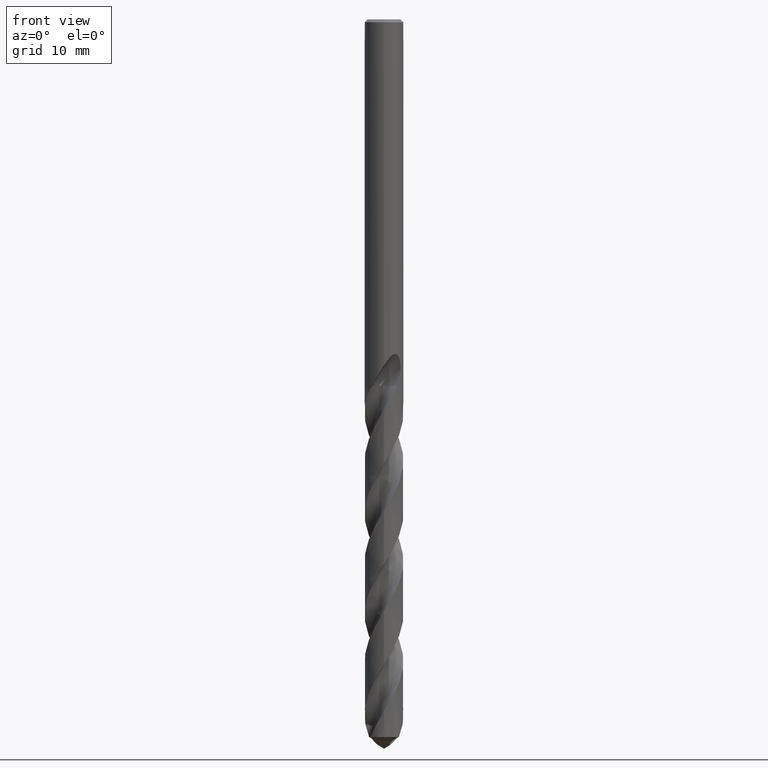
[diagram: clean part render]
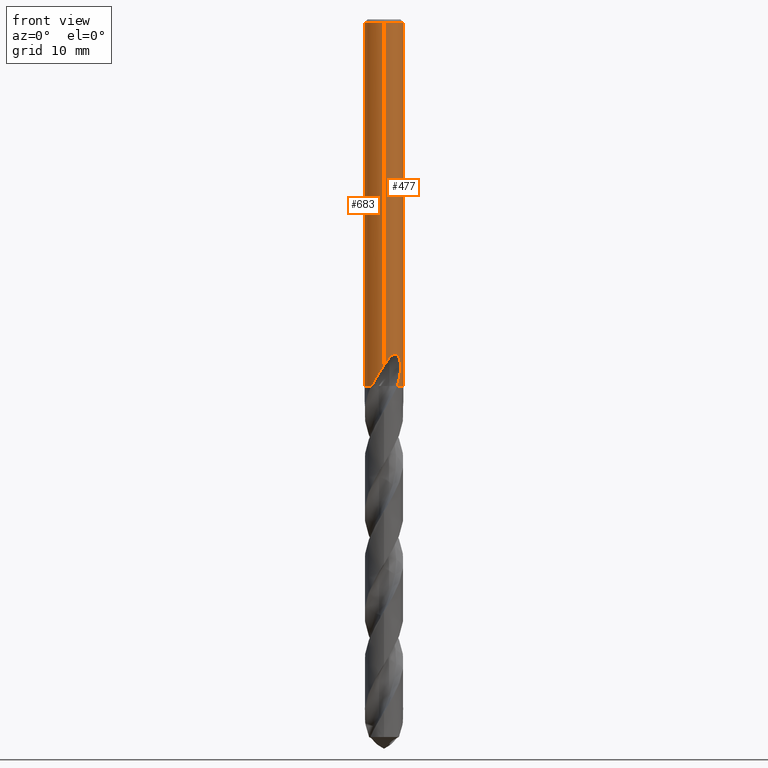
[diagram: same view with one multi-face feature highlighted, each face labeled with its STEP entity id]
A machine part, front view. The highlighted faces form ONE feature: a constant-radius fillet chain: 2 tangent blend faces with common blend radius 2 mm. The faces share edges in the B-rep.
Their STEP definitions:
[1] entity #477 (Cylinder):
#275=VERTEX_POINT('',#775);
#277=VERTEX_POINT('',#777);
#283=VERTEX_POINT('',#783);
#287=EDGE_CURVE('',#283,#623,#787,.T.);
#295=EDGE_CURVE('',#397,#415,#795,.T.);
#305=VERTEX_POINT('',#805);
#309=EDGE_CURVE('',#509,#689,#809,.T.);
#361=EDGE_CURVE('',#731,#445,#869,.T.);
#371=EDGE_CURVE('',#283,#561,#880,.T.);
#397=VERTEX_POINT('',#909);
#415=VERTEX_POINT('',#931);
#423=EDGE_CURVE('',#305,#275,#940,.T.);
#445=VERTEX_POINT('',#962);
#459=EDGE_CURVE('',#445,#659,#976,.T.);
#467=EDGE_CURVE('',#305,#623,#984,.T.);
#477=ADVANCED_FACE('',(#996),#997,.T.);
#479=VERTEX_POINT('',#999);
#509=VERTEX_POINT('',#1032);
#531=EDGE_CURVE('',#275,#731,#1057,.T.);
#561=VERTEX_POINT('',#1092);
#577=EDGE_CURVE('',#397,#277,#1109,.T.);
#595=EDGE_CURVE('',#697,#415,#1128,.T.);
#597=EDGE_CURVE('',#659,#509,#1130,.T.);
#617=EDGE_CURVE('',#689,#277,#1152,.T.);
#623=VERTEX_POINT('',#1159);
#659=VERTEX_POINT('',#1198);
#673=EDGE_CURVE('',#479,#561,#1212,.T.);
#689=VERTEX_POINT('',#1229);
#697=VERTEX_POINT('',#1237);
#713=EDGE_CURVE('',#697,#479,#1253,.T.);
#731=VERTEX_POINT('',#1272);
#775=CARTESIAN_POINT('',(0.29010312703583,1.97884819419885,-24.9998328990228));
#777=CARTESIAN_POINT('',(-1.51864291103934E-016,2.0,-23.0232688117743));
#783=CARTESIAN_POINT('',(1.27205891279158,1.54332955728435,-37.7));
#787=B_SPLINE_CURVE_WITH_KNOTS('',3,(#1347,#1348,#1349,#1350,#1351,#1352,#1353,#1354,#1355,#1356,#1357,#1358,#1359,#1360,#1361,#1362,#1363,#1364,#1365,#1366,#1367,#1368,#1369,#1370,#1371,#1372,#1373,#1374),.UNSPECIFIED.,.F.,.F.,(4,2,2,2,2,2,2,2,2,2,2,2,2,4),(0.0,0.976253434087435,1.51096185278213,1.9958182623443,2.55942501548552,3.23617259082025,3.82046833152564,4.08609401666959,4.28027933824365,4.46406521374986,4.69725322984667,5.03845472802656,5.52348596802615,6.07459506696533),.UNSPECIFIED.);
#795=CIRCLE('',#1470,2.0);
#805=CARTESIAN_POINT('',(-1.44945831354929E-017,2.0,-25.0310253601033));
#809=B_SPLINE_CURVE_WITH_KNOTS('',3,(#1816,#1817,#1818,#1819,#1820,#1821,#1822,#1823,#1824,#1825),.UNSPECIFIED.,.F.,.F.,(4,2,2,2,4),(0.668772102201481,1.00315815330222,1.33754420440296,1.66004422746342,1.98254425052387),.UNSPECIFIED.);
#869=LINE('',#2234,#2235);
#880=CIRCLE('',#2656,2.0);
#909=CARTESIAN_POINT('',(0.0,2.0,-0.300000000000001));
#931=CARTESIAN_POINT('',(2.44921270764475E-016,-2.0,-0.300000000000001));
#940=B_SPLINE_CURVE_WITH_KNOTS('',3,(#4593,#4594,#4595,#4596,#4597,#4598,#4599,#4600,#4601,#4602,#4603,#4604,#4605,#4606),.UNSPECIFIED.,.F.,.F.,(4,2,2,2,2,2,4),(6.29875163181925,6.63672345938473,6.96307452388774,7.28942558839075,7.61577665289376,7.94212771739676,8.26462777482947),.UNSPECIFIED.);
#962=CARTESIAN_POINT('',(0.873560781758956,1.79913633740545,-24.7587351791531));
#976=B_SPLINE_CURVE_WITH_KNOTS('',3,(#4685,#4686,#4687,#4688,#4689,#4690,#4691,#4692,#4693,#4694),.UNSPECIFIED.,.F.,.F.,(4,2,2,2,4),(8.58706544059272,8.90956545396504,9.23206546733736,9.56645150553826,9.90083754373918),.UNSPECIFIED.);
#984=LINE('',#4889,#4890);
#996=FACE_OUTER_BOUND('',#5052,.T.);
#997=CYLINDRICAL_SURFACE('',#5053,2.0);
#999=CARTESIAN_POINT('',(1.62728432652948,-1.16273200722759,-36.6098395401998));
#1032=CARTESIAN_POINT('',(1.33721006514658,1.48723543585765,-22.5150484364821));
#1057=ELLIPSE('',#5915,6.09598914673955,2.0);
#1092=CARTESIAN_POINT('',(1.39147385774032,-1.43659336738872,-37.7));
#1109=LINE('',#6085,#6086);
#1128=LINE('',#6261,#6262);
#1130=LINE('',#6265,#6266);
#1152=B_SPLINE_CURVE_WITH_KNOTS('',3,(#6664,#6665,#6666,#6667,#6668,#6669,#6670,#6671,#6672,#6673,#6674,#6675,#6676,#6677,#6678,#6679,#6680,#6681,#6682,#6683,#6684,#6685,#6686,#6687,#6688,#6689,#6690),.UNSPECIFIED.,.F.,.F.,(4,2,3,2,2,2,2,2,2,2,2,2,4),(-0.548215590012311,-0.274107795006156,0.0,0.274107795006156,0.548215590012311,0.825730471423247,1.10324535283418,1.37444912584475,1.64565289885531,1.91870457575909,2.19175625266288,2.46480792956666,2.73785960647045),.UNSPECIFIED.);
#1159=CARTESIAN_POINT('',(-6.59928004170113E-013,2.0,-35.579038582812));
#1198=CARTESIAN_POINT('',(1.33721006514658,1.48723543585765,-24.2901657003257));
#1212=B_SPLINE_CURVE_WITH_KNOTS('',3,(#7280,#7281,#7282,#7283),.UNSPECIFIED.,.F.,.F.,(4,4),(0.0,1.14417851431034),.UNSPECIFIED.);
#1229=CARTESIAN_POINT('',(0.799431726384364,1.83327818806915,-22.000000276873));
#1237=CARTESIAN_POINT('',(6.58706758843025E-013,-2.0,-35.579038582812));
#1253=B_SPLINE_CURVE_WITH_KNOTS('',3,(#7507,#7508,#7509,#7510,#7511,#7512,#7513,#7514,#7515,#7516,#7517,#7518,#7519,#7520,#7521,#7522,#7523,#7524,#7525,#7526,#7527,#7528,#7529,#7530,#7531,#7532,#7533,#7534),.UNSPECIFIED.,.F.,.F.,(4,2,2,2,2,2,2,2,2,2,2,2,2,4),(0.0,0.976253434087391,1.5109618527821,1.99581826234441,2.55942501548577,3.23617259082066,3.82046833152618,4.08609401667017,4.28027933824427,4.46406521375049,4.69725322984734,5.03845472802689,5.52348596802553,6.07459506696374),.UNSPECIFIED.);
#1272=CARTESIAN_POINT('',(0.873560781758957,1.79913633740545,-23.3198931596091));
#1347=CARTESIAN_POINT('',(1.27205891279158,1.54332955728435,-37.7));
#1348=CARTESIAN_POINT('',(1.14031596359712,1.65191608174329,-37.422962973602));
#1349=CARTESIAN_POINT('',(0.989037990013143,1.74834121142205,-37.16449317914));
#1350=CARTESIAN_POINT('',(0.725255686230942,1.8666740028332,-36.7324835815464));
#1351=CARTESIAN_POINT('',(0.630154238508823,1.90077648329538,-36.5801742603347));
#1352=CARTESIAN_POINT('',(0.445969492446859,1.95176099665056,-36.2852077756797));
#1353=CARTESIAN_POINT('',(0.357697334715228,1.96977380890792,-36.1439077181608));
#1354=CARTESIAN_POINT('',(0.166571006590877,1.99574666056539,-35.8392972874554));
#1355=CARTESIAN_POINT('',(0.0621072659499205,2.00181318407123,-35.6735845698468));
#1356=CARTESIAN_POINT('',(-0.169840427844641,1.996791749432,-35.319204774468));
#1357=CARTESIAN_POINT('',(-0.307389353765631,1.98161041490717,-35.1175602478406));
#1358=CARTESIAN_POINT('',(-0.572185742090547,1.92053573470239,-34.785860429528));
#1359=CARTESIAN_POINT('',(-0.718296181177505,1.87419923755723,-34.62447446646));
#1360=CARTESIAN_POINT('',(-0.939662793741346,1.76718386434549,-34.4730462207967));
#1361=CARTESIAN_POINT('',(-1.01309236893194,1.72669865565317,-34.4355500075416));
#1362=CARTESIAN_POINT('',(-1.14176656222363,1.6433384968797,-34.4067647499074));
#1363=CARTESIAN_POINT('',(-1.19454708929275,1.60537298266913,-34.4062451576516));
#1364=CARTESIAN_POINT('',(-1.29285694783473,1.52717120724882,-34.431511616376));
#1365=CARTESIAN_POINT('',(-1.33585409610196,1.48940004160086,-34.4551877201575));
#1366=CARTESIAN_POINT('',(-1.42335803841819,1.4066234489763,-34.5292553927176));
#1367=CARTESIAN_POINT('',(-1.46384183832482,1.36372525066064,-34.583939538569));
#1368=CARTESIAN_POINT('',(-1.54676602899999,1.27005410934359,-34.7336783364654));
#1369=CARTESIAN_POINT('',(-1.58639962451015,1.21904530756676,-34.8447415861389));
#1370=CARTESIAN_POINT('',(-1.66091486972142,1.11664187455343,-35.1554621689215));
#1371=CARTESIAN_POINT('',(-1.68784410562838,1.07303862106338,-35.3767465810007));
#1372=CARTESIAN_POINT('',(-1.70500323789908,1.04559092771917,-35.9055653850725));
#1373=CARTESIAN_POINT('',(-1.69276722126585,1.07108639362282,-36.237392052066));
#1374=CARTESIAN_POINT('',(-1.62728432652948,1.16273200722758,-36.6098395401998));
#1470=AXIS2_PLACEMENT_3D('',#7963,#7964,#7965);
#1816=CARTESIAN_POINT('',(1.47012520202413,1.35599848465015,-22.7645763622699));
#1817=CARTESIAN_POINT('',(1.42823312429702,1.40141637093117,-22.6661879668164));
#1818=CARTESIAN_POINT('',(1.37700313158227,1.45257649149882,-22.5728913601929));
#1819=CARTESIAN_POINT('',(1.25937268715861,1.55566594260758,-22.4000010024707));
#1820=CARTESIAN_POINT('',(1.19292509135235,1.60758103586569,-22.3204308421202));
#1821=CARTESIAN_POINT('',(1.05314270451827,1.70228131624892,-22.1810138076661));
#1822=CARTESIAN_POINT('',(0.975043515457271,1.74886723125333,-22.1155203403939));
#1823=CARTESIAN_POINT('',(0.802765528370344,1.83434292218238,-21.9980992724811));
#1824=CARTESIAN_POINT('',(0.708571764716129,1.87319984550034,-21.9461697171302));
#1825=CARTESIAN_POINT('',(0.60888935976986,1.90506003778334,-21.9037877961724));
#2234=CARTESIAN_POINT('',(0.873560781758957,1.79913633740545,-24.0393141693811));
#2235=VECTOR('',#8048,1.0);
#2656=AXIS2_PLACEMENT_3D('',#8058,#8059,#8060);
#4593=CARTESIAN_POINT('',(-1.37648100360337,1.45096521209816,-24.3164588568619));
#4594=CARTESIAN_POINT('',(-1.31816673698936,1.50628596020562,-24.4024844309626));
#4595=CARTESIAN_POINT('',(-1.25225772826138,1.5618966813795,-24.4817936475267));
#4596=CARTESIAN_POINT('',(-1.1133610702993,1.66360432908602,-24.6210752807463));
#4597=CARTESIAN_POINT('',(-1.03560993885635,1.71378114990643,-24.6866869307959));
#4598=CARTESIAN_POINT('',(-0.863747529925186,1.80650878215652,-24.8045844711332));
#4599=CARTESIAN_POINT('',(-0.769620967062479,1.84902996088718,-24.8568713835843));
#4600=CARTESIAN_POINT('',(-0.569930857037892,1.92000186579586,-24.942429432433));
#4601=CARTESIAN_POINT('',(-0.464135641093227,1.94850394700092,-24.9757733351224));
#4602=CARTESIAN_POINT('',(-0.247741439375822,1.98764023510202,-25.0202051098028));
#4603=CARTESIAN_POINT('',(-0.137134918591789,1.99825621603292,-25.0312723335086));
#4604=CARTESIAN_POINT('',(0.0791270399578554,2.00132335359969,-25.0312723335086));
#4605=CARTESIAN_POINT('',(0.188762138964385,1.99403822635428,-25.0204593773478));
#4606=CARTESIAN_POINT('',(0.296280536758929,1.97793271966916,-24.9985887758549));
#4685=CARTESIAN_POINT('',(0.608889383206421,1.90506003029262,-24.9014263240358));
#4686=CARTESIAN_POINT('',(0.708571784879529,1.87319983770418,-24.8590444043302));
#4687=CARTESIAN_POINT('',(0.802765545396488,1.83434291458278,-24.8071148505396));
#4688=CARTESIAN_POINT('',(0.975043526735322,1.74886722480981,-24.6896937861503));
#4689=CARTESIAN_POINT('',(1.05314271318471,1.70228131076369,-24.6242003208407));
#4690=CARTESIAN_POINT('',(1.19292509476605,1.60758103315258,-24.4847832910624));
#4691=CARTESIAN_POINT('',(1.25937268791021,1.55566594184168,-24.4052131336702));
#4692=CARTESIAN_POINT('',(1.37700312772911,1.45257649498288,-24.2323227822555));
#4693=CARTESIAN_POINT('',(1.4282331184988,1.40141637672136,-24.1390261789774));
#4694=CARTESIAN_POINT('',(1.4701251946435,1.35599849265197,-24.0406377870177));
#4889=CARTESIAN_POINT('',(-2.44921270764475E-016,2.0,-32.35));
#4890=VECTOR('',#8172,1.0);
#5052=EDGE_LOOP('',(#8191,#8192,#8193,#8194,#8195,#8196,#8197,#8198,#8199,#8200,#8201,#8202,#8203,#8204,#8205));
#5053=AXIS2_PLACEMENT_3D('',#8206,#8207,#8208);
#5915=AXIS2_PLACEMENT_3D('',#8274,#8275,#8276);
#6085=CARTESIAN_POINT('',(-2.44921270764475E-016,2.0,-32.35));
#6086=VECTOR('',#8341,1.0);
#6261=CARTESIAN_POINT('',(2.44921270764475E-016,-2.0,-32.35));
#6262=VECTOR('',#8353,1.0);
#6265=CARTESIAN_POINT('',(1.33721006514658,1.48723543585765,-23.4026070684039));
#6266=VECTOR('',#8354,1.0);
#6664=CARTESIAN_POINT('',(0.666631086045354,1.88563066243578,-21.8151107929061));
#6665=CARTESIAN_POINT('',(0.729102320063794,1.86354507196998,-21.8780227488525));
#6666=CARTESIAN_POINT('',(0.783764436294818,1.84046805476626,-21.9577166766729));
#6667=CARTESIAN_POINT('',(0.856939166721749,1.80755766979359,-22.1337829674881));
#6668=CARTESIAN_POINT('',(0.875400981188567,1.79824167511881,-22.2302727475847));
#6669=CARTESIAN_POINT('',(0.875400981188567,1.79824167511881,-22.3216420125868));
#6670=CARTESIAN_POINT('',(0.875400981188567,1.79824167511881,-22.4130112775888));
#6671=CARTESIAN_POINT('',(0.856939166721748,1.80755766979359,-22.5095010576855));
#6672=CARTESIAN_POINT('',(0.783764436294818,1.84046805476626,-22.6855673485006));
#6673=CARTESIAN_POINT('',(0.729102320063795,1.86354507196998,-22.765261276321));
#6674=CARTESIAN_POINT('',(0.60338335133634,1.90799077087001,-22.8918671669599));
#6675=CARTESIAN_POINT('',(0.523220700755639,1.9324817755433,-22.9473851984488));
#6676=CARTESIAN_POINT('',(0.345948180222079,1.97194461719866,-23.0217410458937));
#6677=CARTESIAN_POINT('',(0.248747613970385,1.98662573029135,-23.0405166027747));
#6678=CARTESIAN_POINT('',(0.0664024182108824,2.00094055539991,-23.0405166027747));
#6679=CARTESIAN_POINT('',(-0.0298165717053051,2.00173631708055,-23.0225004233016));
#6680=CARTESIAN_POINT('',(-0.206564318568687,1.99127308369892,-22.949408961197));
#6681=CARTESIAN_POINT('',(-0.287121312363243,1.98033563604648,-22.8943562878938));
#6682=CARTESIAN_POINT('',(-0.414672305431931,1.95761889791181,-22.7673627445134));
#6683=CARTESIAN_POINT('',(-0.470171773775565,1.9443239450413,-22.6866825279345));
#6684=CARTESIAN_POINT('',(-0.544021821427442,1.92496686225787,-22.5093580077113));
#6685=CARTESIAN_POINT('',(-0.562348199187247,1.91931354991071,-22.4126592382214));
#6686=CARTESIAN_POINT('',(-0.562348199187247,1.91931354991071,-22.2306247869522));
#6687=CARTESIAN_POINT('',(-0.544021821427444,1.92496686225787,-22.1339260174622));
#6688=CARTESIAN_POINT('',(-0.470171773775569,1.9443239450413,-21.9566014972391));
#6689=CARTESIAN_POINT('',(-0.414672305431931,1.95761889791181,-21.8759212806602));
#6690=CARTESIAN_POINT('',(-0.350680272731792,1.96901583191115,-21.8122089191552));
#7280=CARTESIAN_POINT('',(1.6272843265821,-1.16273200715395,-36.6098395402287));
#7281=CARTESIAN_POINT('',(1.56310110942612,-1.25255867629605,-36.9749041661553));
#7282=CARTESIAN_POINT('',(1.48580745805006,-1.34522253015861,-37.3421073211277));
#7283=CARTESIAN_POINT('',(1.39147385774032,-1.43659336738872,-37.7));
#7507=CARTESIAN_POINT('',(-1.27205891279157,-1.54332955728435,-37.7));
#7508=CARTESIAN_POINT('',(-1.14031596359712,-1.65191608174329,-37.4229629736021));
#7509=CARTESIAN_POINT('',(-0.989037990013159,-1.74834121142205,-37.1644931791401));
#7510=CARTESIAN_POINT('',(-0.725255686230928,-1.86667400283321,-36.7324835815464));
#7511=CARTESIAN_POINT('',(-0.63015423850879,-1.90077648329539,-36.5801742603346));
#7512=CARTESIAN_POINT('',(-0.445969492446864,-1.95176099665055,-36.2852077756797));
#7513=CARTESIAN_POINT('',(-0.357697334715236,-1.96977380890792,-36.1439077181608));
#7514=CARTESIAN_POINT('',(-0.166571006590871,-1.99574666056539,-35.8392972874553));
#7515=CARTESIAN_POINT('',(-0.0621072659499175,-2.00181318407123,-35.6735845698468));
#7516=CARTESIAN_POINT('',(0.169840427844634,-1.996791749432,-35.319204774468));
#7517=CARTESIAN_POINT('',(0.307389353765629,-1.98161041490717,-35.1175602478406));
#7518=CARTESIAN_POINT('',(0.572185742090549,-1.92053573470239,-34.785860429528));
#7519=CARTESIAN_POINT('',(0.718296181177506,-1.87419923755723,-34.62447446646));
#7520=CARTESIAN_POINT('',(0.939662793741341,-1.7671838643455,-34.4730462207967));
#7521=CARTESIAN_POINT('',(1.01309236893194,-1.72669865565317,-34.4355500075416));
#7522=CARTESIAN_POINT('',(1.14176656222363,-1.64333849687971,-34.4067647499074));
#7523=CARTESIAN_POINT('',(1.19454708929275,-1.60537298266913,-34.4062451576516));
#7524=CARTESIAN_POINT('',(1.29285694783473,-1.52717120724882,-34.431511616376));
#7525=CARTESIAN_POINT('',(1.33585409610196,-1.48940004160085,-34.4551877201575));
#7526=CARTESIAN_POINT('',(1.42335803841819,-1.4066234489763,-34.5292553927176));
#7527=CARTESIAN_POINT('',(1.46384183832482,-1.36372525066064,-34.583939538569));
#7528=CARTESIAN_POINT('',(1.54676602899994,-1.27005410934365,-34.7336783364653));
#7529=CARTESIAN_POINT('',(1.58639962451012,-1.2190453075668,-34.8447415861387));
#7530=CARTESIAN_POINT('',(1.66091486972143,-1.11664187455342,-35.1554621689216));
#7531=CARTESIAN_POINT('',(1.68784410562838,-1.07303862106338,-35.3767465810007));
#7532=CARTESIAN_POINT('',(1.70500323789909,-1.04559092771917,-35.9055653850725));
#7533=CARTESIAN_POINT('',(1.69276722126584,-1.07108639362283,-36.2373920520661));
#7534=CARTESIAN_POINT('',(1.62728432652948,-1.16273200722758,-36.6098395401998));
#7963=CARTESIAN_POINT('',(0.0,0.0,-0.300000000000001));
#7964=DIRECTION('',(0.0,0.0,-1.0));
#7965=DIRECTION('',(0.0,1.0,0.0));
#8048=DIRECTION('',(0.0,0.0,-1.0));
#8058=CARTESIAN_POINT('',(0.0,0.0,-37.7));
#8059=DIRECTION('',(0.0,0.0,-1.0));
#8060=DIRECTION('',(0.0,1.0,0.0));
#8172=DIRECTION('',(0.0,0.0,-1.0));
#8191=ORIENTED_EDGE('',*,*,#577,.F.);
#8192=ORIENTED_EDGE('',*,*,#295,.T.);
#8193=ORIENTED_EDGE('',*,*,#595,.F.);
#8194=ORIENTED_EDGE('',*,*,#713,.T.);
#8195=ORIENTED_EDGE('',*,*,#673,.T.);
#8196=ORIENTED_EDGE('',*,*,#371,.F.);
#8197=ORIENTED_EDGE('',*,*,#287,.T.);
#8198=ORIENTED_EDGE('',*,*,#467,.F.);
#8199=ORIENTED_EDGE('',*,*,#423,.T.);
#8200=ORIENTED_EDGE('',*,*,#531,.T.);
#8201=ORIENTED_EDGE('',*,*,#361,.T.);
#8202=ORIENTED_EDGE('',*,*,#459,.T.);
#8203=ORIENTED_EDGE('',*,*,#597,.T.);
#8204=ORIENTED_EDGE('',*,*,#309,.T.);
#8205=ORIENTED_EDGE('',*,*,#617,.T.);
#8206=CARTESIAN_POINT('',(0.0,0.0,-32.35));
#8207=DIRECTION('',(-0.0,-0.0,1.0));
#8208=DIRECTION('',(0.0,1.0,0.0));
#8274=CARTESIAN_POINT('',(0.0,0.0,-25.8351219173269));
#8275=DIRECTION('',(0.944648353914092,0.0,-0.328084573619969));
#8276=DIRECTION('',(0.328084573619968,-0.0,0.944648353914092));
#8341=DIRECTION('',(0.0,0.0,-1.0));
#8353=DIRECTION('',(-0.0,-0.0,1.0));
#8354=DIRECTION('',(-0.0,-0.0,1.0));
[2] entity #683 (Cylinder):
#277=VERTEX_POINT('',#777);
#285=EDGE_CURVE('',#375,#367,#785,.T.);
#305=VERTEX_POINT('',#805);
#313=EDGE_CURVE('',#277,#669,#813,.T.);
#331=VERTEX_POINT('',#835);
#367=VERTEX_POINT('',#875);
#373=EDGE_CURVE('',#669,#707,#882,.T.);
#375=VERTEX_POINT('',#884);
#395=VERTEX_POINT('',#907);
#397=VERTEX_POINT('',#909);
#415=VERTEX_POINT('',#931);
#467=EDGE_CURVE('',#305,#623,#984,.T.);
#471=VERTEX_POINT('',#989);
#481=EDGE_CURVE('',#707,#613,#1001,.T.);
#487=EDGE_CURVE('',#367,#735,#1007,.T.);
#511=EDGE_CURVE('',#395,#697,#1034,.T.);
#515=EDGE_CURVE('',#623,#331,#1038,.T.);
#573=EDGE_CURVE('',#613,#375,#1105,.T.);
#577=EDGE_CURVE('',#397,#277,#1109,.T.);
#595=EDGE_CURVE('',#697,#415,#1128,.T.);
#611=EDGE_CURVE('',#735,#305,#1146,.T.);
#613=VERTEX_POINT('',#1148);
#623=VERTEX_POINT('',#1159);
#637=EDGE_CURVE('',#331,#471,#1174,.T.);
#657=EDGE_CURVE('',#415,#397,#1196,.T.);
#669=VERTEX_POINT('',#1208);
#671=EDGE_CURVE('',#395,#471,#1210,.T.);
#683=ADVANCED_FACE('',(#1222),#1223,.T.);
#697=VERTEX_POINT('',#1237);
#707=VERTEX_POINT('',#1247);
#735=VERTEX_POINT('',#1276);
#777=CARTESIAN_POINT('',(-1.51864291103934E-016,2.0,-23.0232688117743));
#785=LINE('',#1343,#1344);
#805=CARTESIAN_POINT('',(-1.44945831354929E-017,2.0,-25.0310253601033));
#813=B_SPLINE_CURVE_WITH_KNOTS('',3,(#1846,#1847,#1848,#1849,#1850,#1851,#1852,#1853,#1854,#1855,#1856,#1857,#1858,#1859,#1860,#1861,#1862,#1863,#1864,#1865,#1866,#1867,#1868,#1869,#1870,#1871,#1872),.UNSPECIFIED.,.F.,.F.,(4,2,3,2,2,2,2,2,2,2,2,2,4),(-0.548215590012311,-0.274107795006156,0.0,0.274107795006156,0.548215590012311,0.825730471423247,1.10324535283418,1.37444912584475,1.64565289885531,1.91870457575909,2.19175625266288,2.46480792956666,2.73785960647045),.UNSPECIFIED.);
#835=CARTESIAN_POINT('',(-1.62728432652948,1.16273200722759,-36.6098395401998));
#875=CARTESIAN_POINT('',(-2.44921270764476E-016,2.0,-23.7128911336578));
#882=B_SPLINE_CURVE_WITH_KNOTS('',3,(#2659,#2660,#2661,#2662,#2663,#2664,#2665,#2666,#2667,#2668,#2669,#2670,#2671,#2672,#2673,#2674,#2675,#2676,#2677,#2678,#2679,#2680,#2681,#2682,#2683,#2684,#2685),.UNSPECIFIED.,.F.,.F.,(4,2,3,2,2,2,2,2,2,2,2,2,4),(-0.548215590012311,-0.274107795006156,0.0,0.274107795006156,0.548215590012311,0.825730471423247,1.10324535283418,1.37444912584475,1.64565289885531,1.91870457575909,2.19175625266288,2.46480792956666,2.73785960647045),.UNSPECIFIED.);
#884=CARTESIAN_POINT('',(2.06254272401591E-016,2.0,-23.5000801551881));
#907=CARTESIAN_POINT('',(-1.27205891279158,-1.54332955728435,-37.7));
#909=CARTESIAN_POINT('',(0.0,2.0,-0.300000000000001));
#931=CARTESIAN_POINT('',(2.44921270764475E-016,-2.0,-0.300000000000001));
#984=LINE('',#4889,#4890);
#989=CARTESIAN_POINT('',(-1.39147385774032,1.43659336738872,-37.7));
#1001=CIRCLE('',#5058,2.0);
#1007=ELLIPSE('',#5067,2.22985686408572,2.0);
#1034=B_SPLINE_CURVE_WITH_KNOTS('',3,(#5837,#5838,#5839,#5840,#5841,#5842,#5843,#5844,#5845,#5846,#5847,#5848,#5849,#5850,#5851,#5852,#5853,#5854,#5855,#5856,#5857,#5858,#5859,#5860,#5861,#5862,#5863,#5864),.UNSPECIFIED.,.F.,.F.,(4,2,2,2,2,2,2,2,2,2,2,2,2,4),(0.0,0.976253434087391,1.5109618527821,1.99581826234441,2.55942501548577,3.23617259082066,3.82046833152618,4.08609401667017,4.28027933824427,4.46406521375049,4.69725322984734,5.03845472802689,5.52348596802553,6.07459506696374),.UNSPECIFIED.);
#1038=B_SPLINE_CURVE_WITH_KNOTS('',3,(#5869,#5870,#5871,#5872,#5873,#5874,#5875,#5876,#5877,#5878,#5879,#5880,#5881,#5882,#5883,#5884,#5885,#5886,#5887,#5888,#5889,#5890,#5891,#5892,#5893,#5894,#5895,#5896),.UNSPECIFIED.,.F.,.F.,(4,2,2,2,2,2,2,2,2,2,2,2,2,4),(0.0,0.976253434087435,1.51096185278213,1.9958182623443,2.55942501548552,3.23617259082025,3.82046833152564,4.08609401666959,4.28027933824365,4.46406521374986,4.69725322984667,5.03845472802656,5.52348596802615,6.07459506696533),.UNSPECIFIED.);
#1105=B_SPLINE_CURVE_WITH_KNOTS('',3,(#6060,#6061,#6062,#6063,#6064,#6065,#6066,#6067,#6068,#6069,#6070,#6071,#6072,#6073,#6074,#6075,#6076,#6077,#6078,#6079),.UNSPECIFIED.,.F.,.F.,(4,2,2,2,2,2,2,2,2,4),(3.45441030101493,3.68346067074283,3.91251104047072,4.14156141019862,4.59966214965442,5.05038771369436,5.27575049571434,5.50111327773431,5.73544410316885,5.96977492860339),.UNSPECIFIED.);
#1109=LINE('',#6085,#6086);
#1128=LINE('',#6261,#6262);
#1146=B_SPLINE_CURVE_WITH_KNOTS('',3,(#6644,#6645,#6646,#6647,#6648,#6649,#6650,#6651,#6652,#6653,#6654,#6655,#6656,#6657),.UNSPECIFIED.,.F.,.F.,(4,2,2,2,2,2,4),(6.29875163181925,6.63672345938473,6.96307452388774,7.28942558839075,7.61577665289376,7.94212771739676,8.26462777482947),.UNSPECIFIED.);
#1148=CARTESIAN_POINT('',(-1.0350734039088,1.71132201777476,-22.3171221986971));
#1159=CARTESIAN_POINT('',(-6.59928004170113E-013,2.0,-35.579038582812));
#1174=B_SPLINE_CURVE_WITH_KNOTS('',3,(#6718,#6719,#6720,#6721),.UNSPECIFIED.,.F.,.F.,(4,4),(0.0,1.14417851431028),.UNSPECIFIED.);
#1196=CIRCLE('',#7262,2.0);
#1208=CARTESIAN_POINT('',(-0.486378944383046,1.9399576084185,-22.6432837483006));
#1210=CIRCLE('',#7277,2.0);
#1222=FACE_OUTER_BOUND('',#7299,.T.);
#1223=CYLINDRICAL_SURFACE('',#7300,2.0);
#1237=CARTESIAN_POINT('',(6.58706758843025E-013,-2.0,-35.579038582812));
#1247=CARTESIAN_POINT('',(-0.562333990228013,1.91931771299966,-22.3171221986971));
#1276=CARTESIAN_POINT('',(-1.337052752443,1.4873768645453,-24.3720803908795));
#1343=CARTESIAN_POINT('',(-2.44921270764475E-016,2.0,-32.35));
#1344=VECTOR('',#7961,1.0);
#1846=CARTESIAN_POINT('',(0.666631086045354,1.88563066243578,-21.8151107929061));
#1847=CARTESIAN_POINT('',(0.729102320063794,1.86354507196998,-21.8780227488525));
#1848=CARTESIAN_POINT('',(0.783764436294818,1.84046805476626,-21.9577166766729));
#1849=CARTESIAN_POINT('',(0.856939166721749,1.80755766979359,-22.1337829674881));
#1850=CARTESIAN_POINT('',(0.875400981188567,1.79824167511881,-22.2302727475847));
#1851=CARTESIAN_POINT('',(0.875400981188567,1.79824167511881,-22.3216420125868));
#1852=CARTESIAN_POINT('',(0.875400981188567,1.79824167511881,-22.4130112775888));
#1853=CARTESIAN_POINT('',(0.856939166721748,1.80755766979359,-22.5095010576855));
#1854=CARTESIAN_POINT('',(0.783764436294818,1.84046805476626,-22.6855673485006));
#1855=CARTESIAN_POINT('',(0.729102320063795,1.86354507196998,-22.765261276321));
#1856=CARTESIAN_POINT('',(0.60338335133634,1.90799077087001,-22.8918671669599));
#1857=CARTESIAN_POINT('',(0.523220700755639,1.9324817755433,-22.9473851984488));
#1858=CARTESIAN_POINT('',(0.345948180222079,1.97194461719866,-23.0217410458937));
#1859=CARTESIAN_POINT('',(0.248747613970385,1.98662573029135,-23.0405166027747));
#1860=CARTESIAN_POINT('',(0.0664024182108824,2.00094055539991,-23.0405166027747));
#1861=CARTESIAN_POINT('',(-0.0298165717053051,2.00173631708055,-23.0225004233016));
#1862=CARTESIAN_POINT('',(-0.206564318568687,1.99127308369892,-22.949408961197));
#1863=CARTESIAN_POINT('',(-0.287121312363243,1.98033563604648,-22.8943562878938));
#1864=CARTESIAN_POINT('',(-0.414672305431931,1.95761889791181,-22.7673627445134));
#1865=CARTESIAN_POINT('',(-0.470171773775565,1.9443239450413,-22.6866825279345));
#1866=CARTESIAN_POINT('',(-0.544021821427442,1.92496686225787,-22.5093580077113));
#1867=CARTESIAN_POINT('',(-0.562348199187247,1.91931354991071,-22.4126592382214));
#1868=CARTESIAN_POINT('',(-0.562348199187247,1.91931354991071,-22.2306247869522));
#1869=CARTESIAN_POINT('',(-0.544021821427444,1.92496686225787,-22.1339260174622));
#1870=CARTESIAN_POINT('',(-0.470171773775569,1.9443239450413,-21.9566014972391));
#1871=CARTESIAN_POINT('',(-0.414672305431931,1.95761889791181,-21.8759212806602));
#1872=CARTESIAN_POINT('',(-0.350680272731792,1.96901583191115,-21.8122089191552));
#2659=CARTESIAN_POINT('',(0.666631086045354,1.88563066243578,-21.8151107929061));
#2660=CARTESIAN_POINT('',(0.729102320063794,1.86354507196998,-21.8780227488525));
#2661=CARTESIAN_POINT('',(0.783764436294818,1.84046805476626,-21.9577166766729));
#2662=CARTESIAN_POINT('',(0.856939166721749,1.80755766979359,-22.1337829674881));
#2663=CARTESIAN_POINT('',(0.875400981188567,1.79824167511881,-22.2302727475847));
#2664=CARTESIAN_POINT('',(0.875400981188567,1.79824167511881,-22.3216420125868));
#2665=CARTESIAN_POINT('',(0.875400981188567,1.79824167511881,-22.4130112775888));
#2666=CARTESIAN_POINT('',(0.856939166721748,1.80755766979359,-22.5095010576855));
#2667=CARTESIAN_POINT('',(0.783764436294818,1.84046805476626,-22.6855673485006));
#2668=CARTESIAN_POINT('',(0.729102320063795,1.86354507196998,-22.765261276321));
#2669=CARTESIAN_POINT('',(0.60338335133634,1.90799077087001,-22.8918671669599));
#2670=CARTESIAN_POINT('',(0.523220700755639,1.9324817755433,-22.9473851984488));
#2671=CARTESIAN_POINT('',(0.345948180222079,1.97194461719866,-23.0217410458937));
#2672=CARTESIAN_POINT('',(0.248747613970385,1.98662573029135,-23.0405166027747));
#2673=CARTESIAN_POINT('',(0.0664024182108824,2.00094055539991,-23.0405166027747));
#2674=CARTESIAN_POINT('',(-0.0298165717053051,2.00173631708055,-23.0225004233016));
#2675=CARTESIAN_POINT('',(-0.206564318568687,1.99127308369892,-22.949408961197));
#2676=CARTESIAN_POINT('',(-0.287121312363243,1.98033563604648,-22.8943562878938));
#2677=CARTESIAN_POINT('',(-0.414672305431931,1.95761889791181,-22.7673627445134));
#2678=CARTESIAN_POINT('',(-0.470171773775565,1.9443239450413,-22.6866825279345));
#2679=CARTESIAN_POINT('',(-0.544021821427442,1.92496686225787,-22.5093580077113));
#2680=CARTESIAN_POINT('',(-0.562348199187247,1.91931354991071,-22.4126592382214));
#2681=CARTESIAN_POINT('',(-0.562348199187247,1.91931354991071,-22.2306247869522));
#2682=CARTESIAN_POINT('',(-0.544021821427444,1.92496686225787,-22.1339260174622));
#2683=CARTESIAN_POINT('',(-0.470171773775569,1.9443239450413,-21.9566014972391));
#2684=CARTESIAN_POINT('',(-0.414672305431931,1.95761889791181,-21.8759212806602));
#2685=CARTESIAN_POINT('',(-0.350680272731792,1.96901583191115,-21.8122089191552));
#4889=CARTESIAN_POINT('',(-2.44921270764475E-016,2.0,-32.35));
#4890=VECTOR('',#8172,1.0);
#5058=AXIS2_PLACEMENT_3D('',#8209,#8210,#8211);
#5067=AXIS2_PLACEMENT_3D('',#8213,#8214,#8215);
#5837=CARTESIAN_POINT('',(-1.27205891279157,-1.54332955728435,-37.7));
#5838=CARTESIAN_POINT('',(-1.14031596359712,-1.65191608174329,-37.4229629736021));
#5839=CARTESIAN_POINT('',(-0.989037990013159,-1.74834121142205,-37.1644931791401));
#5840=CARTESIAN_POINT('',(-0.725255686230928,-1.86667400283321,-36.7324835815464));
#5841=CARTESIAN_POINT('',(-0.63015423850879,-1.90077648329539,-36.5801742603346));
#5842=CARTESIAN_POINT('',(-0.445969492446864,-1.95176099665055,-36.2852077756797));
#5843=CARTESIAN_POINT('',(-0.357697334715236,-1.96977380890792,-36.1439077181608));
#5844=CARTESIAN_POINT('',(-0.166571006590871,-1.99574666056539,-35.8392972874553));
#5845=CARTESIAN_POINT('',(-0.0621072659499175,-2.00181318407123,-35.6735845698468));
#5846=CARTESIAN_POINT('',(0.169840427844634,-1.996791749432,-35.319204774468));
#5847=CARTESIAN_POINT('',(0.307389353765629,-1.98161041490717,-35.1175602478406));
#5848=CARTESIAN_POINT('',(0.572185742090549,-1.92053573470239,-34.785860429528));
#5849=CARTESIAN_POINT('',(0.718296181177506,-1.87419923755723,-34.62447446646));
#5850=CARTESIAN_POINT('',(0.939662793741341,-1.7671838643455,-34.4730462207967));
#5851=CARTESIAN_POINT('',(1.01309236893194,-1.72669865565317,-34.4355500075416));
#5852=CARTESIAN_POINT('',(1.14176656222363,-1.64333849687971,-34.4067647499074));
#5853=CARTESIAN_POINT('',(1.19454708929275,-1.60537298266913,-34.4062451576516));
#5854=CARTESIAN_POINT('',(1.29285694783473,-1.52717120724882,-34.431511616376));
#5855=CARTESIAN_POINT('',(1.33585409610196,-1.48940004160085,-34.4551877201575));
#5856=CARTESIAN_POINT('',(1.42335803841819,-1.4066234489763,-34.5292553927176));
#5857=CARTESIAN_POINT('',(1.46384183832482,-1.36372525066064,-34.583939538569));
#5858=CARTESIAN_POINT('',(1.54676602899994,-1.27005410934365,-34.7336783364653));
#5859=CARTESIAN_POINT('',(1.58639962451012,-1.2190453075668,-34.8447415861387));
#5860=CARTESIAN_POINT('',(1.66091486972143,-1.11664187455342,-35.1554621689216));
#5861=CARTESIAN_POINT('',(1.68784410562838,-1.07303862106338,-35.3767465810007));
#5862=CARTESIAN_POINT('',(1.70500323789909,-1.04559092771917,-35.9055653850725));
#5863=CARTESIAN_POINT('',(1.69276722126584,-1.07108639362283,-36.2373920520661));
#5864=CARTESIAN_POINT('',(1.62728432652948,-1.16273200722758,-36.6098395401998));
#5869=CARTESIAN_POINT('',(1.27205891279158,1.54332955728435,-37.7));
#5870=CARTESIAN_POINT('',(1.14031596359712,1.65191608174329,-37.422962973602));
#5871=CARTESIAN_POINT('',(0.989037990013143,1.74834121142205,-37.16449317914));
#5872=CARTESIAN_POINT('',(0.725255686230942,1.8666740028332,-36.7324835815464));
#5873=CARTESIAN_POINT('',(0.630154238508823,1.90077648329538,-36.5801742603347));
#5874=CARTESIAN_POINT('',(0.445969492446859,1.95176099665056,-36.2852077756797));
#5875=CARTESIAN_POINT('',(0.357697334715228,1.96977380890792,-36.1439077181608));
#5876=CARTESIAN_POINT('',(0.166571006590877,1.99574666056539,-35.8392972874554));
#5877=CARTESIAN_POINT('',(0.0621072659499205,2.00181318407123,-35.6735845698468));
#5878=CARTESIAN_POINT('',(-0.169840427844641,1.996791749432,-35.319204774468));
#5879=CARTESIAN_POINT('',(-0.307389353765631,1.98161041490717,-35.1175602478406));
#5880=CARTESIAN_POINT('',(-0.572185742090547,1.92053573470239,-34.785860429528));
#5881=CARTESIAN_POINT('',(-0.718296181177505,1.87419923755723,-34.62447446646));
#5882=CARTESIAN_POINT('',(-0.939662793741346,1.76718386434549,-34.4730462207967));
#5883=CARTESIAN_POINT('',(-1.01309236893194,1.72669865565317,-34.4355500075416));
#5884=CARTESIAN_POINT('',(-1.14176656222363,1.6433384968797,-34.4067647499074));
#5885=CARTESIAN_POINT('',(-1.19454708929275,1.60537298266913,-34.4062451576516));
#5886=CARTESIAN_POINT('',(-1.29285694783473,1.52717120724882,-34.431511616376));
#5887=CARTESIAN_POINT('',(-1.33585409610196,1.48940004160086,-34.4551877201575));
#5888=CARTESIAN_POINT('',(-1.42335803841819,1.4066234489763,-34.5292553927176));
#5889=CARTESIAN_POINT('',(-1.46384183832482,1.36372525066064,-34.583939538569));
#5890=CARTESIAN_POINT('',(-1.54676602899999,1.27005410934359,-34.7336783364654));
#5891=CARTESIAN_POINT('',(-1.58639962451015,1.21904530756676,-34.8447415861389));
#5892=CARTESIAN_POINT('',(-1.66091486972142,1.11664187455343,-35.1554621689215));
#5893=CARTESIAN_POINT('',(-1.68784410562838,1.07303862106338,-35.3767465810007));
#5894=CARTESIAN_POINT('',(-1.70500323789908,1.04559092771917,-35.9055653850725));
#5895=CARTESIAN_POINT('',(-1.69276722126585,1.07108639362282,-36.237392052066));
#5896=CARTESIAN_POINT('',(-1.62728432652948,1.16273200722758,-36.6098395401998));
#6060=CARTESIAN_POINT('',(-1.01214077168808,1.72498436464991,-22.0943139357074));
#6061=CARTESIAN_POINT('',(-1.02760409909055,1.71591120202078,-22.17164116628));
#6062=CARTESIAN_POINT('',(-1.03510901790186,1.71130047655525,-22.2499517374902));
#6063=CARTESIAN_POINT('',(-1.03510901790186,1.71130047655525,-22.4026519839754));
#6064=CARTESIAN_POINT('',(-1.02760409909055,1.71591120202078,-22.4809625551856));
#6065=CARTESIAN_POINT('',(-0.996677444285605,1.73405752727905,-22.6356170163308));
#6066=CARTESIAN_POINT('',(-0.973269579572756,1.74755595074379,-22.7119680395856));
#6067=CARTESIAN_POINT('',(-0.881410204984953,1.79664606670719,-22.9304692594489));
#6068=CARTESIAN_POINT('',(-0.790220617715833,1.84065993584611,-23.0620469235618));
#6069=CARTESIAN_POINT('',(-0.582027029644157,1.91659166983905,-23.2685988984182));
#6070=CARTESIAN_POINT('',(-0.45085250365606,1.95403675545886,-23.3586412616511));
#6071=CARTESIAN_POINT('',(-0.233356837113997,1.98769376298522,-23.448981260945));
#6072=CARTESIAN_POINT('',(-0.157437387446619,1.99526703384665,-23.471935409607));
#6073=CARTESIAN_POINT('',(-0.0042386148205515,2.00146423936786,-23.5021329222699));
#6074=CARTESIAN_POINT('',(0.0730426698273351,2.00007697904579,-23.5093686300866));
#6075=CARTESIAN_POINT('',(0.225853989496396,1.98874110695982,-23.5093686300866));
#6076=CARTESIAN_POINT('',(0.305378577369714,1.97815181086169,-23.501557282945));
#6077=CARTESIAN_POINT('',(0.461679481186636,1.94761205554746,-23.4697988218617));
#6078=CARTESIAN_POINT('',(0.538460876640542,1.92767145695347,-23.4458672276279));
#6079=CARTESIAN_POINT('',(0.611331212691689,1.90427785482815,-23.4148476871305));
#6085=CARTESIAN_POINT('',(-2.44921270764475E-016,2.0,-32.35));
#6086=VECTOR('',#8341,1.0);
#6261=CARTESIAN_POINT('',(2.44921270764475E-016,-2.0,-32.35));
#6262=VECTOR('',#8353,1.0);
#6644=CARTESIAN_POINT('',(-1.37648100360337,1.45096521209816,-24.3164588568619));
#6645=CARTESIAN_POINT('',(-1.31816673698936,1.50628596020562,-24.4024844309626));
#6646=CARTESIAN_POINT('',(-1.25225772826138,1.5618966813795,-24.4817936475267));
#6647=CARTESIAN_POINT('',(-1.1133610702993,1.66360432908602,-24.6210752807463));
#6648=CARTESIAN_POINT('',(-1.03560993885635,1.71378114990643,-24.6866869307959));
#6649=CARTESIAN_POINT('',(-0.863747529925186,1.80650878215652,-24.8045844711332));
#6650=CARTESIAN_POINT('',(-0.769620967062479,1.84902996088718,-24.8568713835843));
#6651=CARTESIAN_POINT('',(-0.569930857037892,1.92000186579586,-24.942429432433));
#6652=CARTESIAN_POINT('',(-0.464135641093227,1.94850394700092,-24.9757733351224));
#6653=CARTESIAN_POINT('',(-0.247741439375822,1.98764023510202,-25.0202051098028));
#6654=CARTESIAN_POINT('',(-0.137134918591789,1.99825621603292,-25.0312723335086));
#6655=CARTESIAN_POINT('',(0.0791270399578554,2.00132335359969,-25.0312723335086));
#6656=CARTESIAN_POINT('',(0.188762138964385,1.99403822635428,-25.0204593773478));
#6657=CARTESIAN_POINT('',(0.296280536758929,1.97793271966916,-24.9985887758549));
#6718=CARTESIAN_POINT('',(-1.6272843265821,1.16273200715395,-36.6098395402287));
#6719=CARTESIAN_POINT('',(-1.56310110942612,1.25255867629605,-36.9749041661553));
#6720=CARTESIAN_POINT('',(-1.48580745805006,1.34522253015861,-37.3421073211276));
#6721=CARTESIAN_POINT('',(-1.39147385774032,1.43659336738872,-37.7));
#7262=AXIS2_PLACEMENT_3D('',#8435,#8436,#8437);
#7277=AXIS2_PLACEMENT_3D('',#8438,#8439,#8440);
#7299=EDGE_LOOP('',(#8443,#8444,#8445,#8446,#8447,#8448,#8449,#8450,#8451,#8452,#8453,#8454,#8455,#8456,#8457));
#7300=AXIS2_PLACEMENT_3D('',#8458,#8459,#8460);
#7961=DIRECTION('',(0.0,0.0,-1.0));
#8172=DIRECTION('',(0.0,0.0,-1.0));
#8209=CARTESIAN_POINT('',(0.0,0.0,-22.3171221986971));
#8210=DIRECTION('',(0.0,-0.0,1.0));
#8211=DIRECTION('',(0.0,1.0,0.0));
#8213=CARTESIAN_POINT('',(0.0,0.0,-23.7128911336578));
#8214=DIRECTION('',(-0.442195774284071,0.0,0.896918556617774));
#8215=DIRECTION('',(0.896918556617774,-0.0,0.442195774284071));
#8341=DIRECTION('',(0.0,0.0,-1.0));
#8353=DIRECTION('',(-0.0,-0.0,1.0));
#8435=CARTESIAN_POINT('',(0.0,0.0,-0.300000000000001));
#8436=DIRECTION('',(0.0,0.0,-1.0));
#8437=DIRECTION('',(0.0,1.0,0.0));
#8438=CARTESIAN_POINT('',(0.0,0.0,-37.7));
#8439=DIRECTION('',(0.0,0.0,-1.0));
#8440=DIRECTION('',(0.0,1.0,0.0));
#8443=ORIENTED_EDGE('',*,*,#577,.T.);
#8444=ORIENTED_EDGE('',*,*,#313,.T.);
#8445=ORIENTED_EDGE('',*,*,#373,.T.);
#8446=ORIENTED_EDGE('',*,*,#481,.T.);
#8447=ORIENTED_EDGE('',*,*,#573,.T.);
#8448=ORIENTED_EDGE('',*,*,#285,.T.);
#8449=ORIENTED_EDGE('',*,*,#487,.T.);
#8450=ORIENTED_EDGE('',*,*,#611,.T.);
#8451=ORIENTED_EDGE('',*,*,#467,.T.);
#8452=ORIENTED_EDGE('',*,*,#515,.T.);
#8453=ORIENTED_EDGE('',*,*,#637,.T.);
#8454=ORIENTED_EDGE('',*,*,#671,.F.);
#8455=ORIENTED_EDGE('',*,*,#511,.T.);
#8456=ORIENTED_EDGE('',*,*,#595,.T.);
#8457=ORIENTED_EDGE('',*,*,#657,.T.);
#8458=CARTESIAN_POINT('',(0.0,0.0,-32.35));
#8459=DIRECTION('',(-0.0,-0.0,1.0));
#8460=DIRECTION('',(0.0,1.0,0.0));